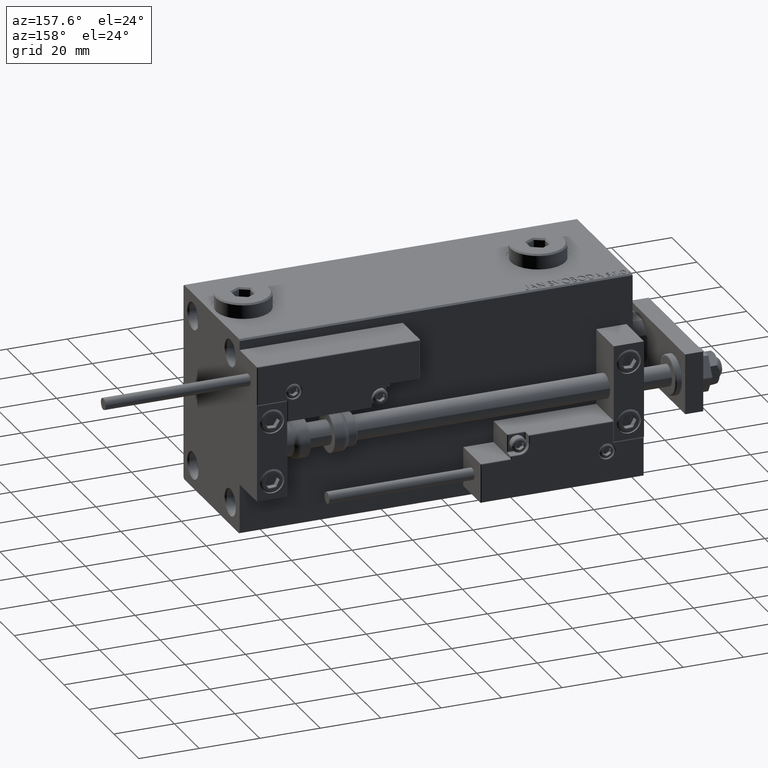
[diagram: clean part render]
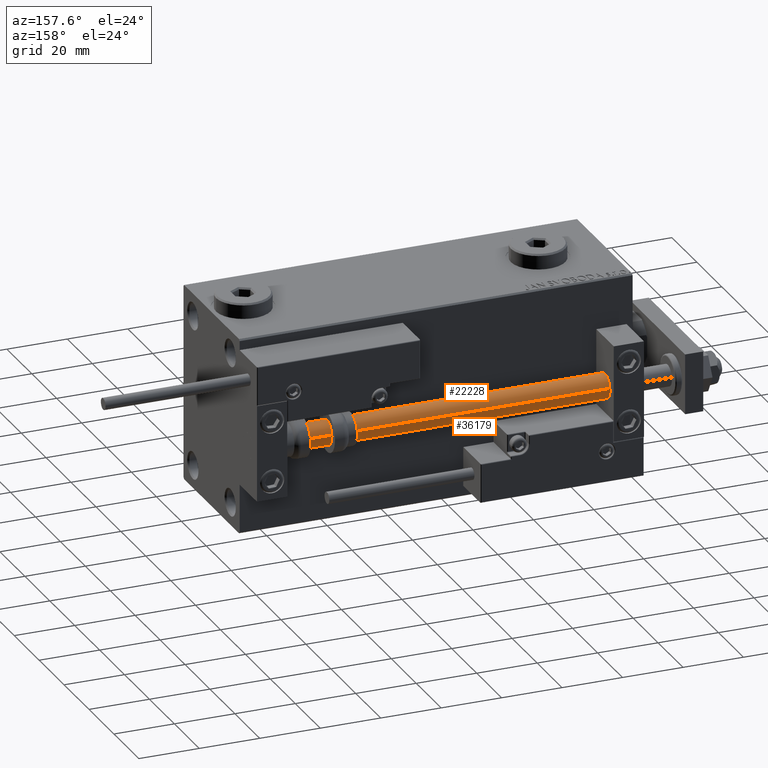
[diagram: same view with one multi-face feature highlighted, each face labeled with its STEP entity id]
A machine part, auxiliary view. The highlighted faces form ONE feature: a constant-radius fillet chain: 2 tangent blend faces with common blend radius 4 mm. The faces share edges in the B-rep.
Their STEP definitions:
[1] entity #36179 (Cylinder):
#542 = VERTEX_POINT ( 'NONE', #29964 ) ;
#1006 = DIRECTION ( 'NONE',  ( -1.000000000000000000, 0.000000000000000000, 0.000000000000000000 ) ) ;
#1956 = VECTOR ( 'NONE', #51621, 1000.000000000000000 ) ;
#2700 = DIRECTION ( 'NONE',  ( -0.000000000000000000, -0.000000000000000000, -1.000000000000000000 ) ) ;
#2843 = DIRECTION ( 'NONE',  ( -0.000000000000000000, -0.000000000000000000, 1.000000000000000000 ) ) ;
#3233 = LINE ( 'NONE', #39373, #1956 ) ;
#7584 = EDGE_LOOP ( 'NONE', ( #16740, #23399, #31774, #52567 ) ) ;
#12624 = AXIS2_PLACEMENT_3D ( 'NONE', #49661, #20674, #1006 ) ;
#13218 = CYLINDRICAL_SURFACE ( 'NONE', #12624, 4.000000000000000000 ) ;
#13873 = DIRECTION ( 'NONE',  ( 1.000000000000000000, 0.000000000000000000, 0.000000000000000000 ) ) ;
#13952 = VERTEX_POINT ( 'NONE', #51130 ) ;
#16001 = AXIS2_PLACEMENT_3D ( 'NONE', #39241, #2843, #29136 ) ;
#16740 = ORIENTED_EDGE ( 'NONE', *, *, #20515, .F. ) ;
#20515 = EDGE_CURVE ( 'NONE', #21261, #37057, #39105, .T. ) ;
#20674 = DIRECTION ( 'NONE',  ( -0.000000000000000000, -0.000000000000000000, -1.000000000000000000 ) ) ;
#21261 = VERTEX_POINT ( 'NONE', #43718 ) ;
#23399 = ORIENTED_EDGE ( 'NONE', *, *, #33587, .F. ) ;
#25182 = FACE_OUTER_BOUND ( 'NONE', #7584, .T. ) ;
#25294 = CIRCLE ( 'NONE', #40567, 4.000000000000000000 ) ;
#26867 = CARTESIAN_POINT ( 'NONE',  ( 0.000000000000000000, 0.000000000000000000, 130.0000000000000000 ) ) ;
#29136 = DIRECTION ( 'NONE',  ( 1.000000000000000000, 0.000000000000000000, 0.000000000000000000 ) ) ;
#29964 = CARTESIAN_POINT ( 'NONE',  ( -4.000000000000000000, 0.000000000000000000, 2.000000000000029310 ) ) ;
#31774 = ORIENTED_EDGE ( 'NONE', *, *, #47767, .T. ) ;
#33587 = EDGE_CURVE ( 'NONE', #13952, #21261, #25294, .T. ) ;
#35389 = CARTESIAN_POINT ( 'NONE',  ( 4.000000000000000000, 4.898587196589412829E-16, 2.000000000000029310 ) ) ;
#36179 = ADVANCED_FACE ( 'NONE', ( #25182 ), #13218, .T. ) ;
#37057 = VERTEX_POINT ( 'NONE', #35389 ) ;
#37412 = EDGE_CURVE ( 'NONE', #542, #37057, #39732, .T. ) ;
#39105 = LINE ( 'NONE', #43374, #49706 ) ;
#39241 = CARTESIAN_POINT ( 'NONE',  ( 0.000000000000000000, 0.000000000000000000, 2.000000000000029310 ) ) ;
#39373 = CARTESIAN_POINT ( 'NONE',  ( -4.000000000000000000, 0.000000000000000000, 130.0000000000000000 ) ) ;
#39732 = CIRCLE ( 'NONE', #16001, 4.000000000000000000 ) ;
#40567 = AXIS2_PLACEMENT_3D ( 'NONE', #26867, #47353, #13873 ) ;
#43374 = CARTESIAN_POINT ( 'NONE',  ( 4.000000000000000000, 4.898587196589412829E-16, 130.0000000000000000 ) ) ;
#43718 = CARTESIAN_POINT ( 'NONE',  ( 4.000000000000000000, 4.898587196589412829E-16, 130.0000000000000000 ) ) ;
#47353 = DIRECTION ( 'NONE',  ( 0.000000000000000000, 0.000000000000000000, 1.000000000000000000 ) ) ;
#47767 = EDGE_CURVE ( 'NONE', #13952, #542, #3233, .T. ) ;
#49661 = CARTESIAN_POINT ( 'NONE',  ( 0.000000000000000000, 0.000000000000000000, 130.0000000000000000 ) ) ;
#49706 = VECTOR ( 'NONE', #2700, 1000.000000000000000 ) ;
#51130 = CARTESIAN_POINT ( 'NONE',  ( -4.000000000000000000, 0.000000000000000000, 130.0000000000000000 ) ) ;
#51621 = DIRECTION ( 'NONE',  ( -0.000000000000000000, -0.000000000000000000, -1.000000000000000000 ) ) ;
#52567 = ORIENTED_EDGE ( 'NONE', *, *, #37412, .T. ) ;
[2] entity #22228 (Cylinder):
#542 = VERTEX_POINT ( 'NONE', #29964 ) ;
#901 = FACE_OUTER_BOUND ( 'NONE', #18913, .T. ) ;
#1956 = VECTOR ( 'NONE', #51621, 1000.000000000000000 ) ;
#2699 = DIRECTION ( 'NONE',  ( 1.000000000000000000, 0.000000000000000000, 0.000000000000000000 ) ) ;
#2700 = DIRECTION ( 'NONE',  ( -0.000000000000000000, -0.000000000000000000, -1.000000000000000000 ) ) ;
#3233 = LINE ( 'NONE', #39373, #1956 ) ;
#4792 = ORIENTED_EDGE ( 'NONE', *, *, #34417, .F. ) ;
#6090 = ORIENTED_EDGE ( 'NONE', *, *, #20515, .T. ) ;
#9689 = CARTESIAN_POINT ( 'NONE',  ( 0.000000000000000000, 0.000000000000000000, 2.000000000000029310 ) ) ;
#9948 = DIRECTION ( 'NONE',  ( 1.000000000000000000, 0.000000000000000000, 0.000000000000000000 ) ) ;
#13645 = CYLINDRICAL_SURFACE ( 'NONE', #51447, 4.000000000000000000 ) ;
#13952 = VERTEX_POINT ( 'NONE', #51130 ) ;
#18913 = EDGE_LOOP ( 'NONE', ( #4792, #6090, #39296, #49334 ) ) ;
#20515 = EDGE_CURVE ( 'NONE', #21261, #37057, #39105, .T. ) ;
#21261 = VERTEX_POINT ( 'NONE', #43718 ) ;
#22228 = ADVANCED_FACE ( 'NONE', ( #901 ), #13645, .T. ) ;
#22374 = CARTESIAN_POINT ( 'NONE',  ( 0.000000000000000000, 0.000000000000000000, 130.0000000000000000 ) ) ;
#22635 = DIRECTION ( 'NONE',  ( 0.000000000000000000, 0.000000000000000000, 1.000000000000000000 ) ) ;
#25334 = CIRCLE ( 'NONE', #26166, 4.000000000000000000 ) ;
#26166 = AXIS2_PLACEMENT_3D ( 'NONE', #22374, #22635, #2699 ) ;
#29864 = DIRECTION ( 'NONE',  ( -0.000000000000000000, -0.000000000000000000, -1.000000000000000000 ) ) ;
#29964 = CARTESIAN_POINT ( 'NONE',  ( -4.000000000000000000, 0.000000000000000000, 2.000000000000029310 ) ) ;
#34417 = EDGE_CURVE ( 'NONE', #21261, #13952, #25334, .T. ) ;
#34623 = AXIS2_PLACEMENT_3D ( 'NONE', #9689, #41859, #9948 ) ;
#35389 = CARTESIAN_POINT ( 'NONE',  ( 4.000000000000000000, 4.898587196589412829E-16, 2.000000000000029310 ) ) ;
#36552 = EDGE_CURVE ( 'NONE', #37057, #542, #46644, .T. ) ;
#37057 = VERTEX_POINT ( 'NONE', #35389 ) ;
#39105 = LINE ( 'NONE', #43374, #49706 ) ;
#39296 = ORIENTED_EDGE ( 'NONE', *, *, #36552, .T. ) ;
#39373 = CARTESIAN_POINT ( 'NONE',  ( -4.000000000000000000, 0.000000000000000000, 130.0000000000000000 ) ) ;
#41859 = DIRECTION ( 'NONE',  ( -0.000000000000000000, -0.000000000000000000, 1.000000000000000000 ) ) ;
#43374 = CARTESIAN_POINT ( 'NONE',  ( 4.000000000000000000, 4.898587196589412829E-16, 130.0000000000000000 ) ) ;
#43718 = CARTESIAN_POINT ( 'NONE',  ( 4.000000000000000000, 4.898587196589412829E-16, 130.0000000000000000 ) ) ;
#46093 = CARTESIAN_POINT ( 'NONE',  ( 0.000000000000000000, 0.000000000000000000, 130.0000000000000000 ) ) ;
#46644 = CIRCLE ( 'NONE', #34623, 4.000000000000000000 ) ;
#47767 = EDGE_CURVE ( 'NONE', #13952, #542, #3233, .T. ) ;
#49306 = DIRECTION ( 'NONE',  ( -1.000000000000000000, 0.000000000000000000, 0.000000000000000000 ) ) ;
#49334 = ORIENTED_EDGE ( 'NONE', *, *, #47767, .F. ) ;
#49706 = VECTOR ( 'NONE', #2700, 1000.000000000000000 ) ;
#51130 = CARTESIAN_POINT ( 'NONE',  ( -4.000000000000000000, 0.000000000000000000, 130.0000000000000000 ) ) ;
#51447 = AXIS2_PLACEMENT_3D ( 'NONE', #46093, #29864, #49306 ) ;
#51621 = DIRECTION ( 'NONE',  ( -0.000000000000000000, -0.000000000000000000, -1.000000000000000000 ) ) ;